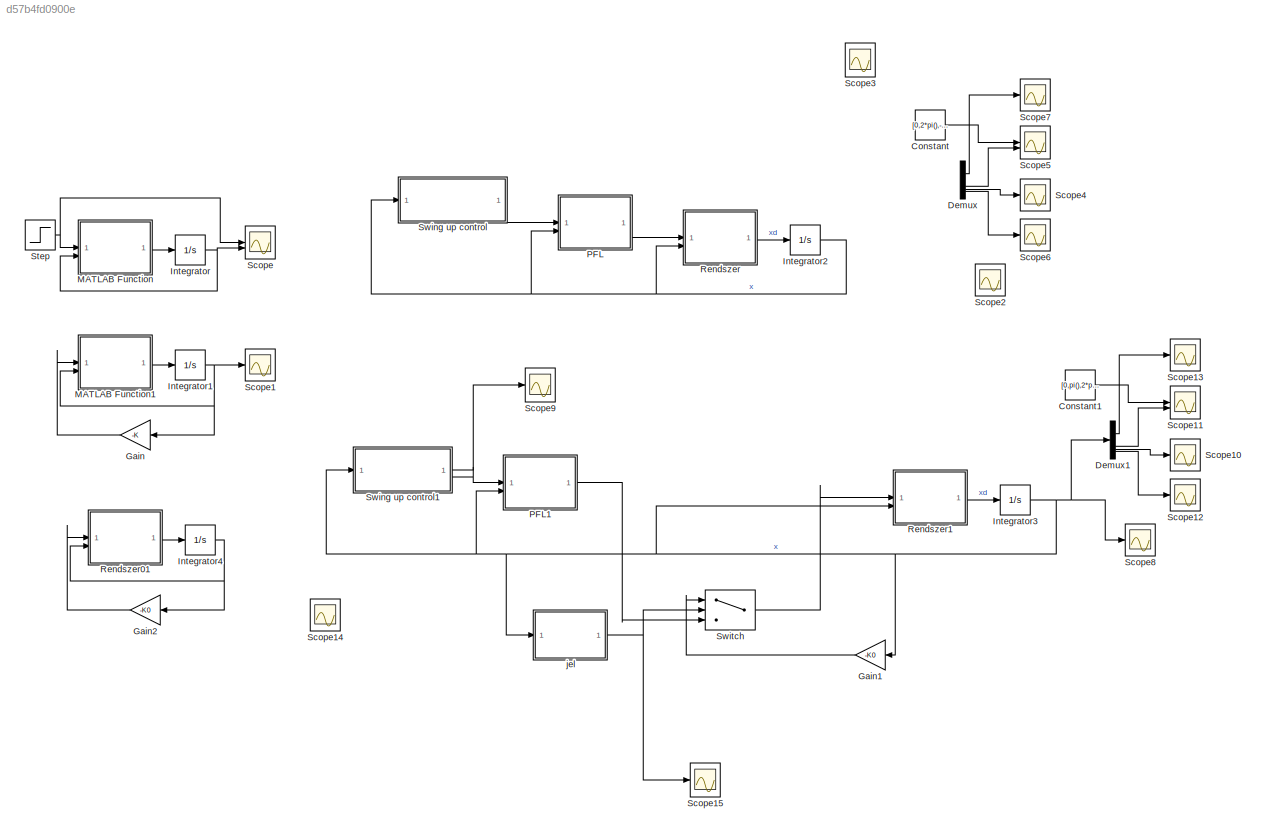
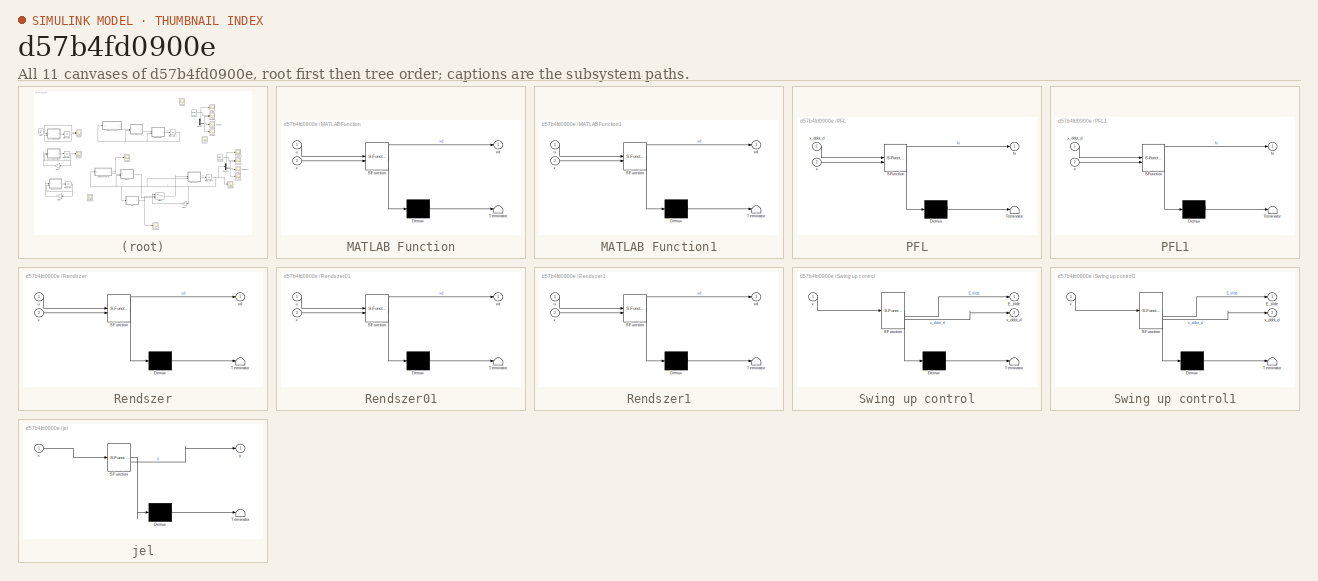
[diagram: thumbnail index - all 11 canvases of the model, root first then tree order]
MODEL slx_d57b4fd0900e
KIND model
CONFIG AbsTol = auto
CONFIG EnableMultiTasking = off
CONFIG FixedStep = auto
CONFIG MaxStep = auto
CONFIG MinStep = auto
CONFIG RelTol = 1e-3
CONFIG SampleTimeConstraint = Unconstrained
CONFIG SolverName = VariableStepAuto
CONFIG StartTime = 0.0
CONFIG StopTime = 50
BLOCK [Constant] Constant
  Value = [0,2*pi(),-2*pi()]
BLOCK [Constant] Constant1
  Value = [0,pi(),2*pi()]
BLOCK [Demux] Demux
BLOCK [Demux] Demux1
BLOCK [Gain] Gain
  Gain = -K
  Multiplication = Matrix(K*u)
BLOCK [Gain] Gain1
  Gain = -K0
  Multiplication = Matrix(K*u)
BLOCK [Gain] Gain2
  Gain = -K0
  Multiplication = Matrix(K*u)
BLOCK [Integrator] Integrator
  InitialCondition = [0;pi();0;0]
BLOCK [Integrator] Integrator1
  InitialCondition = [0;0.2;0;0]
BLOCK [Integrator] Integrator2
  InitialCondition = [0;pi()+0.1;0;0]
BLOCK [Integrator] Integrator3
  InitialCondition = [0;pi()+0.1;0;0]
BLOCK [Integrator] Integrator4
  InitialCondition = [0;0.3;0;0]
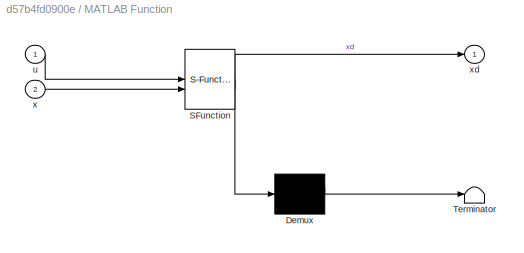
BLOCK [SubSystem] MATLAB Function
  ErrorFcn = Stateflow.Translate.translate
  PermitHierarchicalResolution = ExplicitOnly
  SFBlockType = MATLAB Function
  TreatAsAtomicUnit = on
BLOCK [Demux] MATLAB Function/ Demux 
  Outputs = 1
BLOCK [S-Function] MATLAB Function/ SFunction 
  EnableBusSupport = on
  FunctionName = sf_sfun
  PortCounts = [2 2]
  SFcnIsStateOwnerBlock = off
  SFunctionDeploymentMode = off
  Tag = Stateflow S-Function 2
BLOCK [Terminator] MATLAB Function/ Terminator 
BLOCK [Inport] MATLAB Function/u
BLOCK [Inport] MATLAB Function/x
  Port = 2
BLOCK [Outport] MATLAB Function/xd
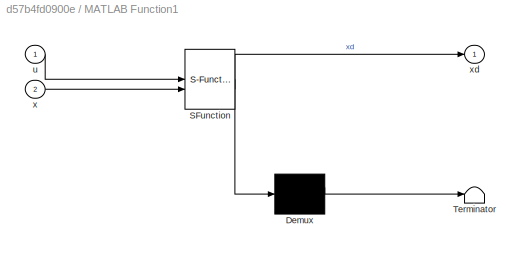
BLOCK [SubSystem] MATLAB Function1
  ErrorFcn = Stateflow.Translate.translate
  PermitHierarchicalResolution = ExplicitOnly
  SFBlockType = MATLAB Function
  TreatAsAtomicUnit = on
BLOCK [Demux] MATLAB Function1/ Demux 
  Outputs = 1
BLOCK [S-Function] MATLAB Function1/ SFunction 
  EnableBusSupport = on
  FunctionName = sf_sfun
  PortCounts = [2 2]
  SFcnIsStateOwnerBlock = off
  SFunctionDeploymentMode = off
  Tag = Stateflow S-Function 1
BLOCK [Terminator] MATLAB Function1/ Terminator 
BLOCK [Inport] MATLAB Function1/u
BLOCK [Inport] MATLAB Function1/x
  Port = 2
BLOCK [Outport] MATLAB Function1/xd
BLOCK [SubSystem] PFL
  ErrorFcn = Stateflow.Translate.translate
  PermitHierarchicalResolution = ExplicitOnly
  SFBlockType = MATLAB Function
  TreatAsAtomicUnit = on
BLOCK [Demux] PFL/ Demux 
  Outputs = 1
BLOCK [S-Function] PFL/ SFunction 
  EnableBusSupport = on
  FunctionName = sf_sfun
  PortCounts = [2 2]
  SFcnIsStateOwnerBlock = off
  SFunctionDeploymentMode = off
  Tag = Stateflow S-Function 4
BLOCK [Terminator] PFL/ Terminator 
BLOCK [Outport] PFL/fx
BLOCK [Inport] PFL/x
  Port = 2
BLOCK [Inport] PFL/x_ddot_d
BLOCK [SubSystem] PFL1
  ErrorFcn = Stateflow.Translate.translate
  PermitHierarchicalResolution = ExplicitOnly
  SFBlockType = MATLAB Function
  TreatAsAtomicUnit = on
BLOCK [Demux] PFL1/ Demux 
  Outputs = 1
BLOCK [S-Function] PFL1/ SFunction 
  EnableBusSupport = on
  FunctionName = sf_sfun
  PortCounts = [2 2]
  SFcnIsStateOwnerBlock = off
  SFunctionDeploymentMode = off
  Tag = Stateflow S-Function 6
BLOCK [Terminator] PFL1/ Terminator 
BLOCK [Outport] PFL1/fx
BLOCK [Inport] PFL1/x
  Port = 2
BLOCK [Inport] PFL1/x_ddot_d
BLOCK [SubSystem] Rendszer
  ErrorFcn = Stateflow.Translate.translate
  PermitHierarchicalResolution = ExplicitOnly
  SFBlockType = MATLAB Function
  TreatAsAtomicUnit = on
BLOCK [Demux] Rendszer/ Demux 
  Outputs = 1
BLOCK [S-Function] Rendszer/ SFunction 
  EnableBusSupport = on
  FunctionName = sf_sfun
  PortCounts = [2 2]
  SFcnIsStateOwnerBlock = off
  SFunctionDeploymentMode = off
  Tag = Stateflow S-Function 3
BLOCK [Terminator] Rendszer/ Terminator 
BLOCK [Inport] Rendszer/u
BLOCK [Inport] Rendszer/x
  Port = 2
BLOCK [Outport] Rendszer/xd
BLOCK [SubSystem] Rendszer01
  ErrorFcn = Stateflow.Translate.translate
  PermitHierarchicalResolution = ExplicitOnly
  SFBlockType = MATLAB Function
  TreatAsAtomicUnit = on
BLOCK [Demux] Rendszer01/ Demux 
  Outputs = 1
BLOCK [S-Function] Rendszer01/ SFunction 
  EnableBusSupport = on
  FunctionName = sf_sfun
  PortCounts = [2 2]
  SFcnIsStateOwnerBlock = off
  SFunctionDeploymentMode = off
  Tag = Stateflow S-Function 9
BLOCK [Terminator] Rendszer01/ Terminator 
BLOCK [Inport] Rendszer01/u
BLOCK [Inport] Rendszer01/x
  Port = 2
BLOCK [Outport] Rendszer01/xd
BLOCK [SubSystem] Rendszer1
  ErrorFcn = Stateflow.Translate.translate
  PermitHierarchicalResolution = ExplicitOnly
  SFBlockType = MATLAB Function
  TreatAsAtomicUnit = on
BLOCK [Demux] Rendszer1/ Demux 
  Outputs = 1
BLOCK [S-Function] Rendszer1/ SFunction 
  EnableBusSupport = on
  FunctionName = sf_sfun
  PortCounts = [2 2]
  SFcnIsStateOwnerBlock = off
  SFunctionDeploymentMode = off
  Tag = Stateflow S-Function 7
BLOCK [Terminator] Rendszer1/ Terminator 
BLOCK [Inport] Rendszer1/u
BLOCK [Inport] Rendszer1/x
  Port = 2
BLOCK [Outport] Rendszer1/xd
BLOCK [Scope] Scope
  Floating = off
  NumInputPorts = 2
  ScopeSpecificationString = Simulink.scopes.TimeScopeBlockCfg('CurrentConfiguration', extmgr.ConfigurationSet(extmgr.Configuration('Core','General UI',true),extmgr.Configuration('Core','Source UI',true),extmgr.Configuration('Sources','WiredSimulink',true),extmgr.Configuration('Visuals','Time Domain',true,'SerializedDisplays',{struct('MinYLimReal','-21.17879','MaxYLimReal','189.85686','YLabelReal','','MinYLimMag','0.00000','M...<+1585ch>
BLOCK [Scope] Scope1
  Floating = off
  NumInputPorts = 1
  ScopeSpecificationString = Simulink.scopes.TimeScopeBlockCfg('CurrentConfiguration', extmgr.ConfigurationSet(extmgr.Configuration('Core','General UI',true),extmgr.Configuration('Core','Source UI',true),extmgr.Configuration('Sources','WiredSimulink',true,'DataLoggingVariableName','ScopeData1'),extmgr.Configuration('Visuals','Time Domain',true,'SerializedDisplays',{struct('MinYLimReal','-0.50814','MaxYLimReal','0.96433','YLab...<+1585ch>
BLOCK [Scope] Scope10
  Floating = off
  NumInputPorts = 1
  ScopeSpecificationString = Simulink.scopes.TimeScopeBlockCfg('CurrentConfiguration', extmgr.ConfigurationSet(extmgr.Configuration('Core','General UI',true),extmgr.Configuration('Core','Source UI',true),extmgr.Configuration('Sources','WiredSimulink',true,'DataLoggingVariableName','ScopeData6'),extmgr.Configuration('Visuals','Time Domain',true,'SerializedDisplays',{struct('MinYLimReal','-13.03825','MaxYLimReal','12.01406','YL...<+1522ch>
BLOCK [Scope] Scope11
  Floating = off
  NumInputPorts = 2
  ScopeSpecificationString = Simulink.scopes.TimeScopeBlockCfg('CurrentConfiguration', extmgr.ConfigurationSet(extmgr.Configuration('Core','General UI',true),extmgr.Configuration('Core','Source UI',true),extmgr.Configuration('Sources','WiredSimulink',true,'DataLoggingVariableName','ScopeData7'),extmgr.Configuration('Visuals','Time Domain',true,'SerializedDisplays',{struct('MinYLimReal','-7.53392','MaxYLimReal','7.81842','YLab...<+1545ch>
BLOCK [Scope] Scope12
  Floating = off
  NumInputPorts = 1
  ScopeSpecificationString = Simulink.scopes.TimeScopeBlockCfg('CurrentConfiguration', extmgr.ConfigurationSet(extmgr.Configuration('Core','General UI',true),extmgr.Configuration('Core','Source UI',true),extmgr.Configuration('Sources','WiredSimulink',true,'DataLoggingVariableName','ScopeData8'),extmgr.Configuration('Visuals','Time Domain',true,'SerializedDisplays',{struct('MinYLimReal','-13.03825','MaxYLimReal','12.01406','YL...<+1509ch>
BLOCK [Scope] Scope13
  Floating = off
  NumInputPorts = 1
  ScopeSpecificationString = Simulink.scopes.TimeScopeBlockCfg('CurrentConfiguration', extmgr.ConfigurationSet(extmgr.Configuration('Core','General UI',true),extmgr.Configuration('Core','Source UI',true),extmgr.Configuration('Sources','WiredSimulink',true,'DataLoggingVariableName','ScopeData9'),extmgr.Configuration('Visuals','Time Domain',true,'SerializedDisplays',{struct('MinYLimReal','-214.9662','MaxYLimReal','189.35889','Y...<+1512ch>
BLOCK [Scope] Scope14
  Floating = off
  NumInputPorts = 1
  ScopeSpecificationString = Simulink.scopes.TimeScopeBlockCfg('CurrentConfiguration', extmgr.ConfigurationSet(extmgr.Configuration('Core','General UI',true),extmgr.Configuration('Core','Source UI',true),extmgr.Configuration('Sources','WiredSimulink',true,'DataLoggingVariableName','ScopeData7'),extmgr.Configuration('Visuals','Time Domain',true,'SerializedDisplays',{struct('MinYLimReal','-2.5006','MaxYLimReal','6.21159','YLabe...<+1522ch>
BLOCK [Scope] Scope15
  Floating = off
  NumInputPorts = 1
  ScopeSpecificationString = Simulink.scopes.TimeScopeBlockCfg('CurrentConfiguration', extmgr.ConfigurationSet(extmgr.Configuration('Core','General UI',true),extmgr.Configuration('Core','Source UI',true),extmgr.Configuration('Sources','WiredSimulink',true,'DataLoggingVariableName','ScopeData2'),extmgr.Configuration('Visuals','Time Domain',true,'SerializedDisplays',{struct('MinYLimReal','1.00000','MaxYLimReal','3.00000','YLabe...<+1496ch>
BLOCK [Scope] Scope2
  Floating = off
  NumInputPorts = 1
  ScopeSpecificationString = Simulink.scopes.TimeScopeBlockCfg('CurrentConfiguration', extmgr.ConfigurationSet(extmgr.Configuration('Core','General UI',true),extmgr.Configuration('Core','Source UI',true),extmgr.Configuration('Sources','WiredSimulink',true,'DataLoggingVariableName','ScopeData1'),extmgr.Configuration('Visuals','Time Domain',true,'SerializedDisplays',{struct('MinYLimReal','-13.03825','MaxYLimReal','12.01406','YL...<+1522ch>
BLOCK [Scope] Scope3
  Floating = off
  NumInputPorts = 1
  ScopeSpecificationString = Simulink.scopes.TimeScopeBlockCfg('CurrentConfiguration', extmgr.ConfigurationSet(extmgr.Configuration('Core','General UI',true),extmgr.Configuration('Core','Source UI',true),extmgr.Configuration('Sources','WiredSimulink',true,'DataLoggingVariableName','ScopeData6'),extmgr.Configuration('Visuals','Time Domain',true,'SerializedDisplays',{struct('MinYLimReal','-13.03825','MaxYLimReal','12.01406','YL...<+1525ch>
BLOCK [Scope] Scope4
  Floating = off
  NumInputPorts = 1
  ScopeSpecificationString = Simulink.scopes.TimeScopeBlockCfg('CurrentConfiguration', extmgr.ConfigurationSet(extmgr.Configuration('Core','General UI',true),extmgr.Configuration('Core','Source UI',true),extmgr.Configuration('Sources','WiredSimulink',true,'DataLoggingVariableName','ScopeData2'),extmgr.Configuration('Visuals','Time Domain',true,'SerializedDisplays',{struct('MinYLimReal','-13.03825','MaxYLimReal','12.01406','YL...<+1522ch>
BLOCK [Scope] Scope5
  Floating = off
  NumInputPorts = 2
  ScopeSpecificationString = Simulink.scopes.TimeScopeBlockCfg('CurrentConfiguration', extmgr.ConfigurationSet(extmgr.Configuration('Core','General UI',true),extmgr.Configuration('Core','Source UI',true),extmgr.Configuration('Sources','WiredSimulink',true,'DataLoggingVariableName','ScopeData3'),extmgr.Configuration('Visuals','Time Domain',true,'SerializedDisplays',{struct('MinYLimReal','-13.03825','MaxYLimReal','12.01406','YL...<+1547ch>
BLOCK [Scope] Scope6
  Floating = off
  NumInputPorts = 1
  ScopeSpecificationString = Simulink.scopes.TimeScopeBlockCfg('CurrentConfiguration', extmgr.ConfigurationSet(extmgr.Configuration('Core','General UI',true),extmgr.Configuration('Core','Source UI',true),extmgr.Configuration('Sources','WiredSimulink',true,'DataLoggingVariableName','ScopeData4'),extmgr.Configuration('Visuals','Time Domain',true,'SerializedDisplays',{struct('MinYLimReal','-13.03825','MaxYLimReal','12.01406','YL...<+1522ch>
BLOCK [Scope] Scope7
  Floating = off
  NumInputPorts = 1
  ScopeSpecificationString = Simulink.scopes.TimeScopeBlockCfg('CurrentConfiguration', extmgr.ConfigurationSet(extmgr.Configuration('Core','General UI',true),extmgr.Configuration('Core','Source UI',true),extmgr.Configuration('Sources','WiredSimulink',true,'DataLoggingVariableName','ScopeData5'),extmgr.Configuration('Visuals','Time Domain',true,'SerializedDisplays',{struct('MinYLimReal','-214.9662','MaxYLimReal','189.35889','Y...<+1512ch>
BLOCK [Scope] Scope8
  Floating = off
  NumInputPorts = 1
  ScopeSpecificationString = Simulink.scopes.TimeScopeBlockCfg('CurrentConfiguration', extmgr.ConfigurationSet(extmgr.Configuration('Core','General UI',true),extmgr.Configuration('Core','Source UI',true),extmgr.Configuration('Sources','WiredSimulink',true,'DataLoggingVariableName','ScopeData10'),extmgr.Configuration('Visuals','Time Domain',true,'SerializedDisplays',{struct('MinYLimReal','-27.83376','MaxYLimReal','34.43617','Y...<+1523ch>
BLOCK [Scope] Scope9
  Floating = off
  NumInputPorts = 1
  ScopeSpecificationString = Simulink.scopes.TimeScopeBlockCfg('CurrentConfiguration', extmgr.ConfigurationSet(extmgr.Configuration('Core','General UI',true),extmgr.Configuration('Core','Source UI',true),extmgr.Configuration('Sources','WiredSimulink',true,'DataLoggingVariableName','ScopeData11'),extmgr.Configuration('Visuals','Time Domain',true,'SerializedDisplays',{struct('MinYLimReal','-13.03825','MaxYLimReal','12.01406','Y...<+1527ch>
BLOCK [Step] Step
  After = 0.5
  SampleTime = 0
  Time = 5
BLOCK [SubSystem] Swing up control
  ErrorFcn = Stateflow.Translate.translate
  PermitHierarchicalResolution = ExplicitOnly
  SFBlockType = MATLAB Function
  TreatAsAtomicUnit = on
BLOCK [Demux] Swing up control/ Demux 
  Outputs = 1
BLOCK [S-Function] Swing up control/ SFunction 
  EnableBusSupport = on
  FunctionName = sf_sfun
  PortCounts = [1 3]
  SFcnIsStateOwnerBlock = off
  SFunctionDeploymentMode = off
  Tag = Stateflow S-Function 5
BLOCK [Terminator] Swing up control/ Terminator 
BLOCK [Outport] Swing up control/E_tilde
BLOCK [Inport] Swing up control/x
BLOCK [Outport] Swing up control/x_ddot_d
  Port = 2
BLOCK [SubSystem] Swing up control1
  ErrorFcn = Stateflow.Translate.translate
  PermitHierarchicalResolution = ExplicitOnly
  SFBlockType = MATLAB Function
  TreatAsAtomicUnit = on
BLOCK [Demux] Swing up control1/ Demux 
  Outputs = 1
BLOCK [S-Function] Swing up control1/ SFunction 
  EnableBusSupport = on
  FunctionName = sf_sfun
  PortCounts = [1 3]
  SFcnIsStateOwnerBlock = off
  SFunctionDeploymentMode = off
  Tag = Stateflow S-Function 8
BLOCK [Terminator] Swing up control1/ Terminator 
BLOCK [Outport] Swing up control1/E_tilde
BLOCK [Inport] Swing up control1/x
BLOCK [Outport] Swing up control1/x_ddot_d
  Port = 2
BLOCK [Switch] Switch
  Criteria = u2 > Threshold
  InputSameDT = off
  SaturateOnIntegerOverflow = off
  Threshold = 1
BLOCK [SubSystem] jel
  ErrorFcn = Stateflow.Translate.translate
  PermitHierarchicalResolution = ExplicitOnly
  SFBlockType = MATLAB Function
  TreatAsAtomicUnit = on
BLOCK [Demux] jel/ Demux 
  Outputs = 1
BLOCK [S-Function] jel/ SFunction 
  EnableBusSupport = on
  FunctionName = sf_sfun
  PortCounts = [1 2]
  SFcnIsStateOwnerBlock = off
  SFunctionDeploymentMode = off
  Tag = Stateflow S-Function 10
BLOCK [Terminator] jel/ Terminator 
BLOCK [Inport] jel/x
BLOCK [Outport] jel/y
LINE Constant1:1 -> Scope11:1
LINE Constant:1 -> Scope5:1
LINE Demux1:1 -> Scope13:1
LINE Demux1:2 -> Scope11:2
LINE Demux1:3 -> Scope10:1
LINE Demux1:4 -> Scope12:1
LINE Demux:1 -> Scope7:1
LINE Demux:2 -> Scope5:2
LINE Demux:3 -> Scope4:1
LINE Demux:4 -> Scope6:1
LINE Gain1:1 -> Switch:1
LINE Gain2:1 -> Rendszer01:1
LINE Gain:1 -> MATLAB Function1:1
NET Integrator1:1 -> Gain:1, MATLAB Function1:2, Scope1:1
NET Integrator2:1 -> PFL:2, Rendszer:2, Swing up control:1
NET Integrator3:1 -> Demux1:1, Gain1:1, PFL1:2, Rendszer1:2, Scope8:1, Swing up control1:1, jel:1
NET Integrator4:1 -> Gain2:1, Rendszer01:2
NET Integrator:1 -> MATLAB Function:2, Scope:2
LINE MATLAB Function1:1 -> Integrator1:1
LINE MATLAB Function:1 -> Integrator:1
LINE PFL1:1 -> Switch:3
LINE PFL:1 -> Rendszer:1
LINE Rendszer01:1 -> Integrator4:1
LINE Rendszer1:1 -> Integrator3:1
LINE Rendszer:1 -> Integrator2:1
NET Step:1 -> MATLAB Function:1, Scope:1
LINE Swing up control1:1 -> Scope9:1
LINE Swing up control1:2 -> PFL1:1
LINE Swing up control:2 -> PFL:1
LINE Switch:1 -> Rendszer1:1
NET jel:1 -> Scope15:1, Switch:2
note: NET lines group one-source signal fan-out (src -> all destinations, sorted); 1:1 wires keep LINE
CHART MATLAB Function1 states=1 transitions=1
  STATE_LABEL 'eML_blk_kernel()'
  STATE_LABEL 'SCRIPT:\nfunction xd = fcn(u, x)\ng=9.81;\nM=5;\nm=0.3;\nl=0.6;\n\n\nphi=x(2);\nphi_dot=x(4);\nF=u;\n\nxd1=x(3); %x_dot\nxd2=x(4); %fi_dot\nxd3=(2*l*m*sin(phi)*phi_dot^2 + 4*F - 3*g*m*cos(phi)*sin(phi))/(- 3*m*cos(phi)^2 + 4*M + 4*m);%x_ddot\nxd4= - (3*(l*m*cos(phi)*sin(phi)*phi_dot^2 + 2*F*cos(phi) - 2*g*m*sin(phi) - 2*M*g*sin(phi)))/(l*(- 3*m*cos(phi)^2 + 4*M + 4*m));  %fi_ddot\nxd=[xd1;xd2;xd3;xd4];'
CHART MATLAB Function states=1 transitions=1
  STATE_LABEL 'eML_blk_kernel()'
  STATE_LABEL 'SCRIPT:\nfunction xd = fcn(u, x)\ng=9.81;\nM=2;\nm=1;\nl=1;\n\nphi=x(2);\nphi_dot=x(4);\nF=u;\n\nxd1=x(3); %x_dot\nxd2=x(4); %fi_dot\nxd3=(2*l*m*sin(phi)*phi_dot^2 + 4*F - 3*g*m*cos(phi)*sin(phi))/(- 3*m*cos(phi)^2 + 4*M + 4*m);%x_ddot\nxd4= - (3*(l*m*cos(phi)*sin(phi)*phi_dot^2 + 2*F*cos(phi) - 2*g*m*sin(phi) - 2*M*g*sin(phi)))/(l*(- 3*m*cos(phi)^2 + 4*M + 4*m));  %fi_ddot\nxd=[xd1;xd2;xd3;xd4];'
CHART Rendszer states=1 transitions=1
  STATE_LABEL 'eML_blk_kernel()'
  STATE_LABEL 'SCRIPT:\nfunction xd = fcn(u, x)\ng=9.81;\nM=5;\nm=0.3;\nl=0.6;\n\nphi=x(2);\nphi_dot=x(4);\nF=u;\n\nxd1=x(3); %x_dot\nxd2=x(4); %fi_dot\nxd3=(2*l*m*sin(phi)*phi_dot^2 + 4*F - 3*g*m*cos(phi)*sin(phi))/(- 3*m*cos(phi)^2 + 4*M + 4*m);%x_ddot\nxd4= -(3*(l*m*cos(phi)*sin(phi)*phi_dot^2 + 2*F*cos(phi) - 2*g*m*sin(phi) - 2*M*g*sin(phi)))/(l*(- 3*m*cos(phi)^2 + 4*M + 4*m));  %fi_ddot\nxd=[xd1;xd2;xd3;xd4];'
CHART PFL states=1 transitions=1
  STATE_LABEL 'eML_blk_kernel()'
  STATE_LABEL 'SCRIPT:\nfunction fx = fcn(x_ddot_d, x)\ng=9.81;\nM=5;\nm=0.3;\nl=0.6;\n\nphi=x(2);\nphi_dot=x(4);\nfx=0.5*m*sin(phi)*(3*g*cos(phi)/2-l*phi_dot^2)+(M+m-3*m*cos(phi)/4)*x_ddot_d;'
CHART Swing up control states=1 transitions=1
  STATE_LABEL 'eML_blk_kernel()'
  STATE_LABEL 'SCRIPT:\nfunction [E_tilde,x_ddot_d] = fcn(x) %x az állapot vektor\nphi=x(2);\nphi_dot=x(4);\n\ng=9.81;\nM=5;\nm=0.3;\nl=0.6;\n\n\nkE=5;  %erősítés k>0\nkp=1;\nkd=1;\n\nc=3/4*m*l^2;\nE_tilde=0.5*c*phi_dot^2+0.5*m*g*l*(cos(phi)-1);\nx_ddot_d = kE*cos(phi)*phi_dot*E_tilde-kp*x(1)-kd*(3);'
CHART PFL1 states=1 transitions=1
  STATE_LABEL 'eML_blk_kernel()'
  STATE_LABEL 'SCRIPT:\nfunction fx = fcn(x_ddot_d, x)\ng=9.81;\nM=5;\nm=0.3;\nl=0.6;\nJ=1;\n\n\nphi=x(2);\nphi_dot=x(4);\nfx=(M+m-(m^2*l^2*cos(phi)^2)/(m*l^2+J))*x_ddot_d+(m^2*l^2*g*cos(phi)*sin(phi))/(m*l^2+J)-m*l*sin(phi)*phi_dot^2;'
CHART Rendszer1 states=1 transitions=1
  STATE_LABEL 'eML_blk_kernel()'
  STATE_LABEL 'SCRIPT:\nfunction xd = fcn(u, x)\ng=9.81;\nM=5;\nm=0.3;\nl=0.6;\nJ=1;\n\n\nphi=x(2);\nphi_dot=x(4);\nF=u;\n\nxd1=x(3); %x_dot\nxd2=x(4); %fi_dot\nxd3=(sin(phi)*l^3*m^2*phi_dot^2 - g*cos(phi)*sin(phi)*l^2*m^2 + F*l^2*m + J*sin(phi)*l*m*phi_dot^2 + F*J)/(- l^2*m^2*cos(phi)^2 + l^2*m^2 + M*l^2*m + J*m + J*M);%x_ddot\nxd4= -(l*m*(l*m*cos(phi)*sin(phi)*phi_dot^2 + F*cos(phi) - g*m*sin(phi) - M*g*sin(phi)))/(- l^2*m^2*...<+76ch>'
CHART Swing up control1 states=1 transitions=1
  STATE_LABEL 'eML_blk_kernel()'
  STATE_LABEL 'SCRIPT:\nfunction [E_tilde,x_ddot_d] = fcn(x) %x az állapot vektor\nphi=x(2);\nphi_dot=x(4);\n\ng=9.81;\nM=5;\nm=0.3;\nl=0.6;\n\n\nkE=1;  %erősítés k>0\nkp=1.5;\nkd=5;\n\nc=3/4*m*l^2;\nE_tilde=0.5*c*phi_dot^2+0.5*m*g*l*(cos(phi)-1);\nx_ddot_d = -kE*cos(phi)*phi_dot*E_tilde-kp*x(1)-kd*(3);'
CHART Rendszer01 states=1 transitions=1
  STATE_LABEL 'eML_blk_kernel()'
  STATE_LABEL 'SCRIPT:\nfunction xd = fcn(u, x)\ng=9.81;\nM=5;\nm=0.3;\nl=0.6;\nJ=1;\n\n\nphi=x(2);\nphi_dot=x(4);\nF=u;\n\nxd1=x(3); %x_dot\nxd2=x(4); %fi_dot\nxd3=(sin(phi)*l^3*m^2*phi_dot^2 - g*cos(phi)*sin(phi)*l^2*m^2 + F*l^2*m + J*sin(phi)*l*m*phi_dot^2 + F*J)/(- l^2*m^2*cos(phi)^2 + l^2*m^2 + M*l^2*m + J*m + J*M);%x_ddot\nxd4= -(l*m*(l*m*cos(phi)*sin(phi)*phi_dot^2 + F*cos(phi) - g*m*sin(phi) - M*g*sin(phi)))/(- l^2*m^2*...<+76ch>'
CHART jel states=1 transitions=1
  STATE_LABEL 'eML_blk_kernel()'
  STATE_LABEL 'SCRIPT:\nfunction y = fcn(x)\nphi=x(2);\n\nif abs(phi-2*pi())<0.2\n    y=2;\nelse\n    y=0;\nend'
CHART  states=0 transitions=0
CHART  states=0 transitions=0
CHART  states=0 transitions=0
CHART  states=0 transitions=0
CHART  states=0 transitions=0
CHART  states=0 transitions=0
CHART  states=0 transitions=0
CHART  states=0 transitions=0
CHART  states=0 transitions=0
CHART  states=0 transitions=0
